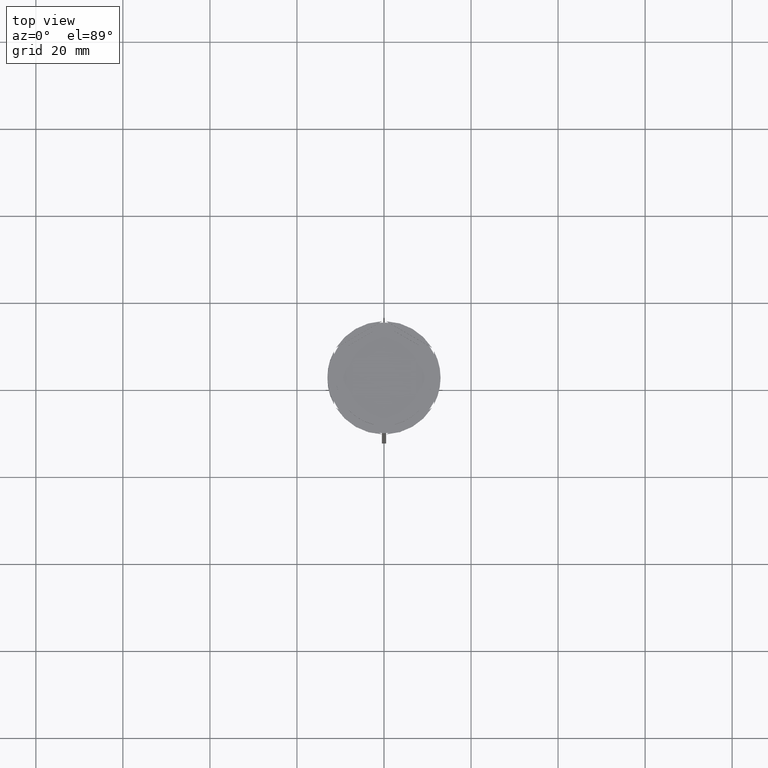
[diagram: clean part render]
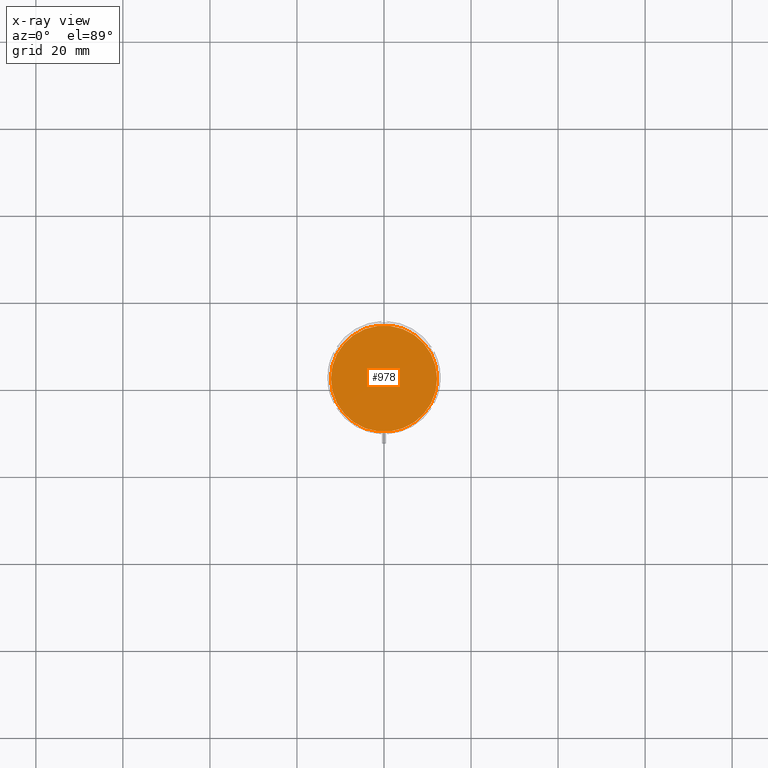
[diagram: x-ray — body ghosted, one internal face saturated and labeled with its STEP entity id]
A machine part, top view, then the same camera in x-ray: the body is ghosted and one INTERNAL B-rep face — a face not visible from any outside direction — is saturated and labeled: STEP entity #978.
In plain terms, the highlighted planar face has unit normal (0, 0, -1).
Its self-contained STEP definition (entity closure, byte-faithful):
#3 = DIRECTION ( 'NONE',  ( -0.000000000000000000, -0.000000000000000000, 1.000000000000000000 ) ) ;
#149 = CIRCLE ( 'NONE', #1954, 12.20000000000000639 ) ;
#162 = PLANE ( 'NONE',  #1647 ) ;
#582 = EDGE_CURVE ( 'NONE', #1629, #2561, #149, .T. ) ;
#618 = ORIENTED_EDGE ( 'NONE', *, *, #1795, .T. ) ;
#801 = DIRECTION ( 'NONE',  ( -0.000000000000000000, -0.000000000000000000, 1.000000000000000000 ) ) ;
#978 = ADVANCED_FACE ( 'NONE', ( #1433 ), #162, .F. ) ;
#1071 = DIRECTION ( 'NONE',  ( -1.000000000000000000, 0.000000000000000000, 0.000000000000000000 ) ) ;
#1422 = CIRCLE ( 'NONE', #1877, 12.20000000000000639 ) ;
#1433 = FACE_OUTER_BOUND ( 'NONE', #1475, .T. ) ;
#1475 = EDGE_LOOP ( 'NONE', ( #1970, #618 ) ) ;
#1629 = VERTEX_POINT ( 'NONE', #2698 ) ;
#1647 = AXIS2_PLACEMENT_3D ( 'NONE', #1850, #2294, #2705 ) ;
#1795 = EDGE_CURVE ( 'NONE', #2561, #1629, #1422, .T. ) ;
#1850 = CARTESIAN_POINT ( 'NONE',  ( 0.000000000000000000, 0.000000000000000000, -12.00000000000000000 ) ) ;
#1877 = AXIS2_PLACEMENT_3D ( 'NONE', #2300, #801, #2531 ) ;
#1954 = AXIS2_PLACEMENT_3D ( 'NONE', #2099, #3, #1071 ) ;
#1970 = ORIENTED_EDGE ( 'NONE', *, *, #582, .T. ) ;
#2099 = CARTESIAN_POINT ( 'NONE',  ( 0.000000000000000000, 0.000000000000000000, -12.00000000000000000 ) ) ;
#2294 = DIRECTION ( 'NONE',  ( 0.000000000000000000, 0.000000000000000000, -1.000000000000000000 ) ) ;
#2300 = CARTESIAN_POINT ( 'NONE',  ( 0.000000000000000000, 0.000000000000000000, -12.00000000000000000 ) ) ;
#2446 = CARTESIAN_POINT ( 'NONE',  ( 12.20000000000000639, 1.512438796946981880E-15, -12.00000000000000000 ) ) ;
#2531 = DIRECTION ( 'NONE',  ( -1.000000000000000000, 0.000000000000000000, 0.000000000000000000 ) ) ;
#2561 = VERTEX_POINT ( 'NONE', #2446 ) ;
#2698 = CARTESIAN_POINT ( 'NONE',  ( -12.20000000000000639, 0.000000000000000000, -12.00000000000000000 ) ) ;
#2705 = DIRECTION ( 'NONE',  ( -1.000000000000000000, 0.000000000000000000, -0.000000000000000000 ) ) ;